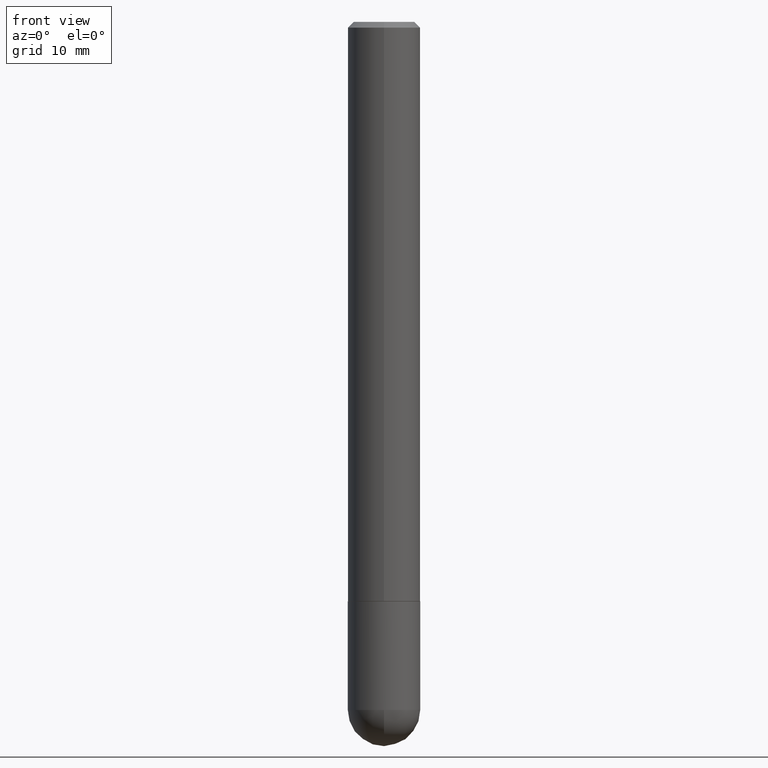
[diagram: clean part render]
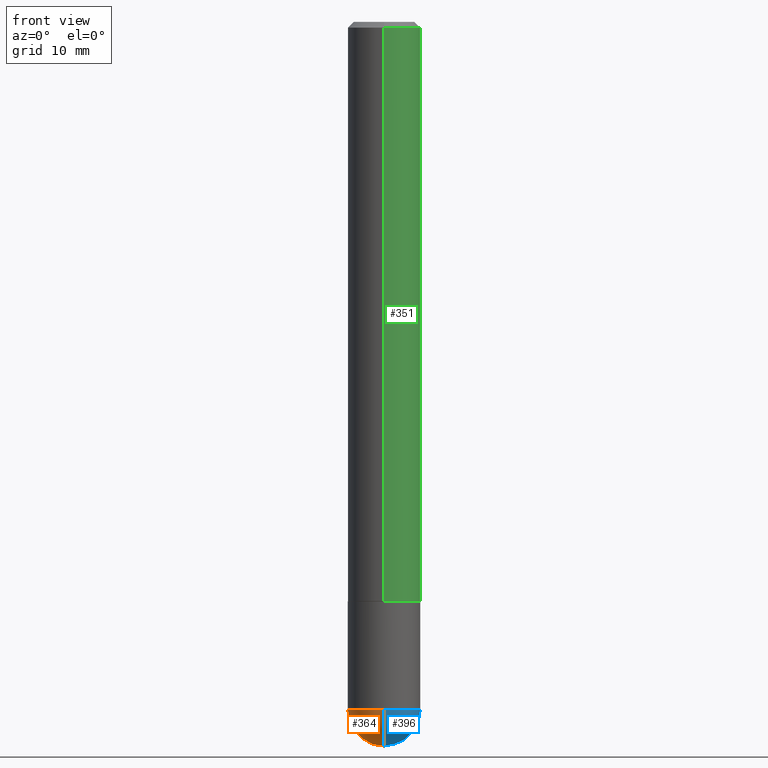
[diagram: same view with three faces highlighted in distinct colors, each labeled with its STEP entity id]
A machine part, front view with three faces highlighted in distinct colors.
Their STEP definitions:

[orange] entity #364 — the highlighted spherical surface has radius 3.175 mm.
#1 = ORIENTED_EDGE ( 'NONE', *, *, #232, .T. ) ;
#54 = AXIS2_PLACEMENT_3D ( 'NONE', #271, #81, #349 ) ;
#70 = VERTEX_POINT ( 'NONE', #109 ) ;
#73 = CIRCLE ( 'NONE', #275, 0.1250000000000001943 ) ;
#74 = DIRECTION ( 'NONE',  ( -1.000000000000000000, 6.982962677686265922E-15, -4.883557194083112340E-29 ) ) ;
#81 = DIRECTION ( 'NONE',  ( 1.000000000000000000, -6.982962677686265922E-15, 4.883557194083112340E-29 ) ) ;
#95 = ORIENTED_EDGE ( 'NONE', *, *, #316, .F. ) ;
#102 = FACE_OUTER_BOUND ( 'NONE', #217, .T. ) ;
#109 = CARTESIAN_POINT ( 'NONE',  ( -8.881784197000695190E-16, -0.1250000000000086320, -2.374999999999999112 ) ) ;
#125 = AXIS2_PLACEMENT_3D ( 'NONE', #395, #400, #137 ) ;
#131 = DIRECTION ( 'NONE',  ( -2.445468806185136597E-29, 3.491481338843145583E-15, 1.000000000000000000 ) ) ;
#135 = CARTESIAN_POINT ( 'NONE',  ( 5.476868636775814291E-29, -8.766450547892521992E-15, -2.375000000000000000 ) ) ;
#137 = DIRECTION ( 'NONE',  ( 1.000000000000000000, -6.982962677686269077E-15, 0.000000000000000000 ) ) ;
#139 = CARTESIAN_POINT ( 'NONE',  ( 5.787897026856327965E-29, -9.195231672753244292E-15, -2.500000000000000444 ) ) ;
#146 = CIRCLE ( 'NONE', #365, 0.1250000000000000278 ) ;
#164 = EDGE_CURVE ( 'NONE', #291, #390, #216, .T. ) ;
#186 = CARTESIAN_POINT ( 'NONE',  ( 5.476868636775814291E-29, -8.766450547892521992E-15, -2.375000000000000000 ) ) ;
#200 = VERTEX_POINT ( 'NONE', #274 ) ;
#205 = DIRECTION ( 'NONE',  ( 6.982962677686265922E-15, 1.000000000000000000, -4.370956789862814050E-15 ) ) ;
#209 = CIRCLE ( 'NONE', #125, 0.1250000000000000278 ) ;
#216 = CIRCLE ( 'NONE', #54, 0.1250000000000001943 ) ;
#217 = EDGE_LOOP ( 'NONE', ( #394, #1, #285, #95 ) ) ;
#232 = EDGE_CURVE ( 'NONE', #291, #70, #73, .T. ) ;
#260 = CARTESIAN_POINT ( 'NONE',  ( 5.807988414689698296E-29, -8.292268179752468540E-15, -2.374999999999999556 ) ) ;
#271 = CARTESIAN_POINT ( 'NONE',  ( 5.476868636775814291E-29, -8.766450547892521992E-15, -2.375000000000000000 ) ) ;
#274 = CARTESIAN_POINT ( 'NONE',  ( -0.1250000000000000278, -6.749437009019255804E-15, -2.374999999999999556 ) ) ;
#275 = AXIS2_PLACEMENT_3D ( 'NONE', #186, #310, #277 ) ;
#277 = DIRECTION ( 'NONE',  ( -7.105427357601001859E-15, -1.000000000000000000, 0.000000000000000000 ) ) ;
#285 = ORIENTED_EDGE ( 'NONE', *, *, #313, .F. ) ;
#291 = VERTEX_POINT ( 'NONE', #139 ) ;
#302 = CARTESIAN_POINT ( 'NONE',  ( 8.728703347108405312E-16, 0.1249999999999916039, -2.375000000000000000 ) ) ;
#310 = DIRECTION ( 'NONE',  ( -1.000000000000000000, 7.105427357601001070E-15, -4.926315508542082329E-29 ) ) ;
#313 = EDGE_CURVE ( 'NONE', #200, #70, #146, .T. ) ;
#316 = EDGE_CURVE ( 'NONE', #390, #200, #209, .T. ) ;
#321 = AXIS2_PLACEMENT_3D ( 'NONE', #135, #74, #205 ) ;
#329 = DIRECTION ( 'NONE',  ( 1.000000000000000000, -6.982962677686269077E-15, 0.000000000000000000 ) ) ;
#349 = DIRECTION ( 'NONE',  ( 6.982962677686266711E-15, 1.000000000000000000, 0.000000000000000000 ) ) ;
#364 = ADVANCED_FACE ( 'NONE', ( #102 ), #366, .T. ) ;
#365 = AXIS2_PLACEMENT_3D ( 'NONE', #260, #131, #329 ) ;
#366 = SPHERICAL_SURFACE ( 'NONE', #321, 0.1250000000000001943 ) ;
#390 = VERTEX_POINT ( 'NONE', #302 ) ;
#394 = ORIENTED_EDGE ( 'NONE', *, *, #164, .F. ) ;
#395 = CARTESIAN_POINT ( 'NONE',  ( 5.807988414689698296E-29, -8.292268179752468540E-15, -2.374999999999999556 ) ) ;
#400 = DIRECTION ( 'NONE',  ( -2.445468806185136597E-29, 3.491481338843145583E-15, 1.000000000000000000 ) ) ;

[blue] entity #396 — the highlighted spherical surface has radius 3.175 mm.
#23 = DIRECTION ( 'NONE',  ( 6.982962677686265922E-15, 1.000000000000000000, -4.370956789862814050E-15 ) ) ;
#40 = ORIENTED_EDGE ( 'NONE', *, *, #140, .F. ) ;
#42 = DIRECTION ( 'NONE',  ( 1.000000000000000000, -6.982962677686269077E-15, 0.000000000000000000 ) ) ;
#54 = AXIS2_PLACEMENT_3D ( 'NONE', #271, #81, #349 ) ;
#70 = VERTEX_POINT ( 'NONE', #109 ) ;
#73 = CIRCLE ( 'NONE', #275, 0.1250000000000001943 ) ;
#81 = DIRECTION ( 'NONE',  ( 1.000000000000000000, -6.982962677686265922E-15, 4.883557194083112340E-29 ) ) ;
#82 = AXIS2_PLACEMENT_3D ( 'NONE', #236, #332, #42 ) ;
#86 = CARTESIAN_POINT ( 'NONE',  ( 5.807988414689698296E-29, -8.292268179752468540E-15, -2.374999999999999556 ) ) ;
#109 = CARTESIAN_POINT ( 'NONE',  ( -8.881784197000695190E-16, -0.1250000000000086320, -2.374999999999999112 ) ) ;
#127 = EDGE_LOOP ( 'NONE', ( #254, #358, #40, #198 ) ) ;
#139 = CARTESIAN_POINT ( 'NONE',  ( 5.787897026856327965E-29, -9.195231672753244292E-15, -2.500000000000000444 ) ) ;
#140 = EDGE_CURVE ( 'NONE', #202, #390, #253, .T. ) ;
#149 = DIRECTION ( 'NONE',  ( -2.445468806185136597E-29, 3.491481338843145583E-15, 1.000000000000000000 ) ) ;
#152 = CIRCLE ( 'NONE', #82, 0.1250000000000000278 ) ;
#164 = EDGE_CURVE ( 'NONE', #291, #390, #216, .T. ) ;
#182 = FACE_OUTER_BOUND ( 'NONE', #127, .T. ) ;
#185 = SPHERICAL_SURFACE ( 'NONE', #301, 0.1250000000000001943 ) ;
#186 = CARTESIAN_POINT ( 'NONE',  ( 5.476868636775814291E-29, -8.766450547892521992E-15, -2.375000000000000000 ) ) ;
#198 = ORIENTED_EDGE ( 'NONE', *, *, #374, .F. ) ;
#202 = VERTEX_POINT ( 'NONE', #402 ) ;
#216 = CIRCLE ( 'NONE', #54, 0.1250000000000001943 ) ;
#232 = EDGE_CURVE ( 'NONE', #291, #70, #73, .T. ) ;
#236 = CARTESIAN_POINT ( 'NONE',  ( 5.807988414689698296E-29, -8.292268179752468540E-15, -2.374999999999999556 ) ) ;
#253 = CIRCLE ( 'NONE', #350, 0.1250000000000000278 ) ;
#254 = ORIENTED_EDGE ( 'NONE', *, *, #232, .F. ) ;
#271 = CARTESIAN_POINT ( 'NONE',  ( 5.476868636775814291E-29, -8.766450547892521992E-15, -2.375000000000000000 ) ) ;
#273 = CARTESIAN_POINT ( 'NONE',  ( 5.476868636775814291E-29, -8.766450547892521992E-15, -2.375000000000000000 ) ) ;
#275 = AXIS2_PLACEMENT_3D ( 'NONE', #186, #310, #277 ) ;
#277 = DIRECTION ( 'NONE',  ( -7.105427357601001859E-15, -1.000000000000000000, 0.000000000000000000 ) ) ;
#291 = VERTEX_POINT ( 'NONE', #139 ) ;
#301 = AXIS2_PLACEMENT_3D ( 'NONE', #273, #335, #23 ) ;
#302 = CARTESIAN_POINT ( 'NONE',  ( 8.728703347108405312E-16, 0.1249999999999916039, -2.375000000000000000 ) ) ;
#304 = DIRECTION ( 'NONE',  ( 1.000000000000000000, -6.982962677686269077E-15, 0.000000000000000000 ) ) ;
#310 = DIRECTION ( 'NONE',  ( -1.000000000000000000, 7.105427357601001070E-15, -4.926315508542082329E-29 ) ) ;
#332 = DIRECTION ( 'NONE',  ( -2.445468806185136597E-29, 3.491481338843145583E-15, 1.000000000000000000 ) ) ;
#335 = DIRECTION ( 'NONE',  ( -1.000000000000000000, 6.982962677686265922E-15, -4.883557194083112340E-29 ) ) ;
#349 = DIRECTION ( 'NONE',  ( 6.982962677686266711E-15, 1.000000000000000000, 0.000000000000000000 ) ) ;
#350 = AXIS2_PLACEMENT_3D ( 'NONE', #86, #149, #304 ) ;
#358 = ORIENTED_EDGE ( 'NONE', *, *, #164, .T. ) ;
#374 = EDGE_CURVE ( 'NONE', #70, #202, #152, .T. ) ;
#390 = VERTEX_POINT ( 'NONE', #302 ) ;
#396 = ADVANCED_FACE ( 'NONE', ( #182 ), #185, .T. ) ;
#402 = CARTESIAN_POINT ( 'NONE',  ( 0.1250000000000000278, -8.510485763430165164E-15, -2.374999999999999556 ) ) ;

[green] entity #351 — the highlighted cylindrical surface (edge-blend (fillet) strip) has radius 3.175 mm, axis along (-0, 0, 1).
#9 = DIRECTION ( 'NONE',  ( -6.982962677686265922E-15, -1.000000000000000000, 3.489106859820707875E-15 ) ) ;
#13 = AXIS2_PLACEMENT_3D ( 'NONE', #122, #197, #99 ) ;
#20 = DIRECTION ( 'NONE',  ( -2.447126896024399518E-29, 3.489106859820708269E-15, 1.000000000000000000 ) ) ;
#22 = EDGE_CURVE ( 'NONE', #290, #319, #195, .T. ) ;
#33 = EDGE_CURVE ( 'NONE', #38, #330, #91, .T. ) ;
#34 = CARTESIAN_POINT ( 'NONE',  ( -8.728703347107842263E-16, -0.1250000000000001388, 4.361383574775889774E-16 ) ) ;
#35 = EDGE_LOOP ( 'NONE', ( #101, #363, #170, #354 ) ) ;
#38 = VERTEX_POINT ( 'NONE', #163 ) ;
#50 = CARTESIAN_POINT ( 'NONE',  ( 8.881784197001260212E-16, 0.1250000000000001388, -4.361383574775889774E-16 ) ) ;
#67 = EDGE_CURVE ( 'NONE', #38, #290, #220, .T. ) ;
#71 = CARTESIAN_POINT ( 'NONE',  ( 0.000000000000000000, 0.000000000000000000, 0.000000000000000000 ) ) ;
#91 = CIRCLE ( 'NONE', #13, 0.1250000000000002498 ) ;
#99 = DIRECTION ( 'NONE',  ( -6.982962677686265133E-15, -1.000000000000000000, 4.370956789862812472E-15 ) ) ;
#101 = ORIENTED_EDGE ( 'NONE', *, *, #33, .T. ) ;
#121 = EDGE_CURVE ( 'NONE', #330, #319, #180, .T. ) ;
#122 = CARTESIAN_POINT ( 'NONE',  ( 4.891806665152773460E-29, -6.974724612781594373E-15, -1.998999999999999666 ) ) ;
#142 = DIRECTION ( 'NONE',  ( -2.447126896024399518E-29, 3.489106859820708269E-15, 1.000000000000000000 ) ) ;
#156 = DIRECTION ( 'NONE',  ( -6.982962677686265922E-15, -1.000000000000000000, 3.483106191921934765E-15 ) ) ;
#158 = AXIS2_PLACEMENT_3D ( 'NONE', #306, #142, #156 ) ;
#160 = DIRECTION ( 'NONE',  ( -2.447126896024399518E-29, 3.489106859820708269E-15, 1.000000000000000000 ) ) ;
#163 = CARTESIAN_POINT ( 'NONE',  ( -8.728703347107360072E-16, -0.1250000000000072164, -1.998999999999999000 ) ) ;
#170 = ORIENTED_EDGE ( 'NONE', *, *, #22, .F. ) ;
#180 = LINE ( 'NONE', #50, #249 ) ;
#195 = CIRCLE ( 'NONE', #158, 0.1250000000000000278 ) ;
#197 = DIRECTION ( 'NONE',  ( -2.447126896024399518E-29, 3.489106859820708269E-15, 1.000000000000000000 ) ) ;
#220 = LINE ( 'NONE', #34, #399 ) ;
#249 = VECTOR ( 'NONE', #20, 39.37007874015748143 ) ;
#266 = FACE_OUTER_BOUND ( 'NONE', #35, .T. ) ;
#289 = AXIS2_PLACEMENT_3D ( 'NONE', #71, #393, #9 ) ;
#290 = VERTEX_POINT ( 'NONE', #292 ) ;
#292 = CARTESIAN_POINT ( 'NONE',  ( -8.575622497214411495E-16, -0.1250000000000001110, -0.01999999999999964306 ) ) ;
#294 = CARTESIAN_POINT ( 'NONE',  ( 8.881784197001510675E-16, 0.1249999999999932693, -1.999000000000000110 ) ) ;
#306 = CARTESIAN_POINT ( 'NONE',  ( 4.894253792048817813E-31, -6.978213719641443063E-17, -0.02000000000000007674 ) ) ;
#319 = VERTEX_POINT ( 'NONE', #362 ) ;
#324 = CYLINDRICAL_SURFACE ( 'NONE', #289, 0.1250000000000001388 ) ;
#330 = VERTEX_POINT ( 'NONE', #294 ) ;
#351 = ADVANCED_FACE ( 'NONE', ( #266 ), #324, .T. ) ;
#354 = ORIENTED_EDGE ( 'NONE', *, *, #67, .F. ) ;
#362 = CARTESIAN_POINT ( 'NONE',  ( 8.728703347107839305E-16, 0.1249999999999999584, -0.02000000000000051389 ) ) ;
#363 = ORIENTED_EDGE ( 'NONE', *, *, #121, .T. ) ;
#393 = DIRECTION ( 'NONE',  ( -2.447126896024399518E-29, 3.489106859820708269E-15, 1.000000000000000000 ) ) ;
#399 = VECTOR ( 'NONE', #160, 39.37007874015748143 ) ;